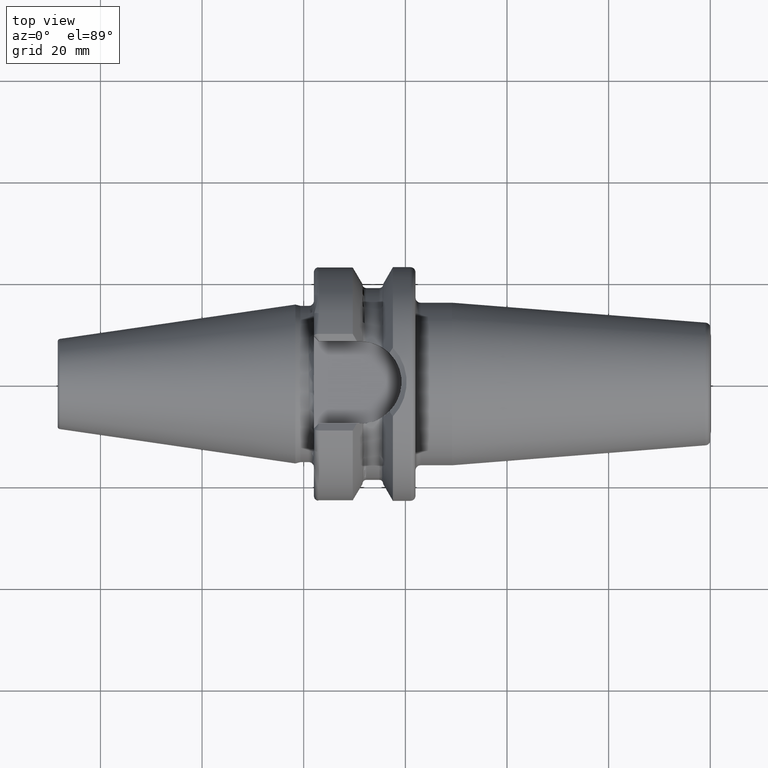
[diagram: clean part render]
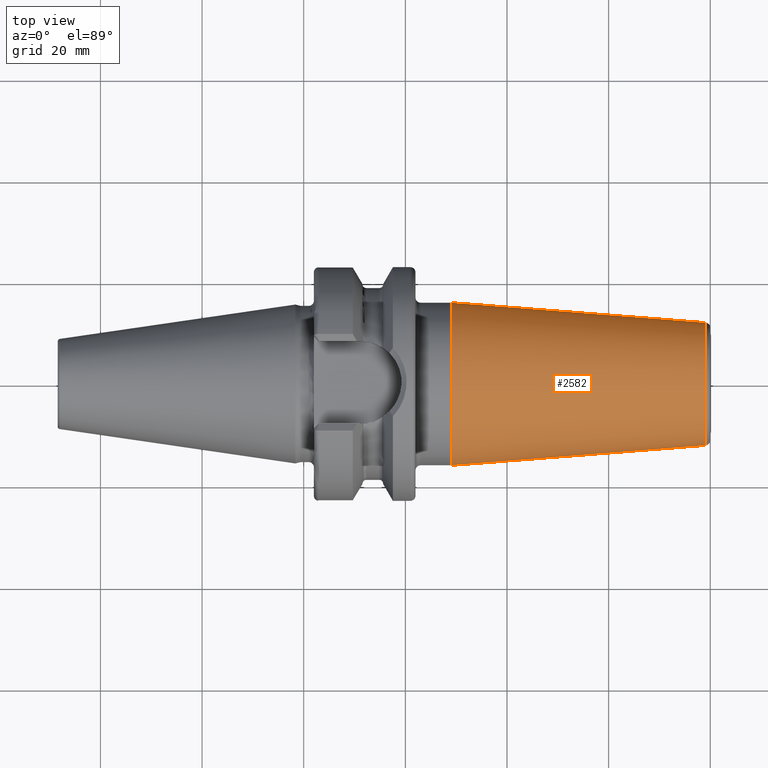
[diagram: same view with one face highlighted and labeled with its STEP entity id]
A machine part, top view. The second image highlights one B-rep face of the part: STEP entity #2582.
In plain terms, the highlighted conical surface has half-angle 4.5 deg.
Its self-contained STEP definition (entity closure, byte-faithful):
#847=CARTESIAN_POINT('',(2.917518105530E1,0.E0,0.E0));
#848=DIRECTION('',(1.E0,0.E0,0.E0));
#849=DIRECTION('',(0.E0,1.E0,0.E0));
#850=AXIS2_PLACEMENT_3D('',#847,#848,#849);
#870=DIRECTION('',(-9.969173337331E-1,7.845909572785E-2,1.323025669138E-14));
#871=VECTOR('',#870,5.005758888107E1);
#872=CARTESIAN_POINT('',(7.907845909573E1,1.207252684207E1,
-6.603153153697E-13));
#873=LINE('',#872,#871);
#874=DIRECTION('',(-9.969173337331E-1,-7.845909572785E-2,-1.322301152341E-14));
#875=VECTOR('',#874,5.005758888107E1);
#876=CARTESIAN_POINT('',(7.907845909573E1,-1.207252684207E1,
6.599526397297E-13));
#877=LINE('',#876,#875);
#883=CARTESIAN_POINT('',(7.907845909573E1,0.E0,0.E0));
#884=DIRECTION('',(-1.E0,0.E0,0.E0));
#885=DIRECTION('',(0.E0,-1.E0,0.E0));
#886=AXIS2_PLACEMENT_3D('',#883,#884,#885);
#1383=CARTESIAN_POINT('',(2.917518105530E1,1.6E1,0.E0));
#1384=CARTESIAN_POINT('',(2.917518105530E1,-1.6E1,0.E0));
#1385=VERTEX_POINT('',#1383);
#1386=VERTEX_POINT('',#1384);
#1395=CARTESIAN_POINT('',(7.907845909573E1,1.207252684207E1,
-6.603153153697E-13));
#1396=VERTEX_POINT('',#1395);
#1397=CARTESIAN_POINT('',(7.907845909573E1,-1.207252684207E1,
6.599526397297E-13));
#1398=VERTEX_POINT('',#1397);
#2570=CARTESIAN_POINT('',(5.412682007551E1,0.E0,0.E0));
#2571=DIRECTION('',(-1.E0,0.E0,0.E0));
#2572=DIRECTION('',(0.E0,1.E0,0.E0));
#2573=AXIS2_PLACEMENT_3D('',#2570,#2571,#2572);
#2574=CONICAL_SURFACE('',#2573,1.403626342104E1,4.5E0);
#2575=ORIENTED_EDGE('',*,*,#2560,.F.);
#2577=ORIENTED_EDGE('',*,*,#2576,.F.);
#2578=ORIENTED_EDGE('',*,*,#2563,.T.);
#2579=ORIENTED_EDGE('',*,*,#2535,.F.);
#2580=EDGE_LOOP('',(#2575,#2577,#2578,#2579));
#2581=FACE_OUTER_BOUND('',#2580,.F.);
#2582=ADVANCED_FACE('',(#2581),#2574,.T.);
#851=CIRCLE('',#850,1.6E1);
#887=CIRCLE('',#886,1.207252684207E1);
#2535=EDGE_CURVE('',#1385,#1386,#851,.T.);
#2560=EDGE_CURVE('',#1396,#1385,#873,.T.);
#2563=EDGE_CURVE('',#1398,#1386,#877,.T.);
#2576=EDGE_CURVE('',#1398,#1396,#887,.T.);